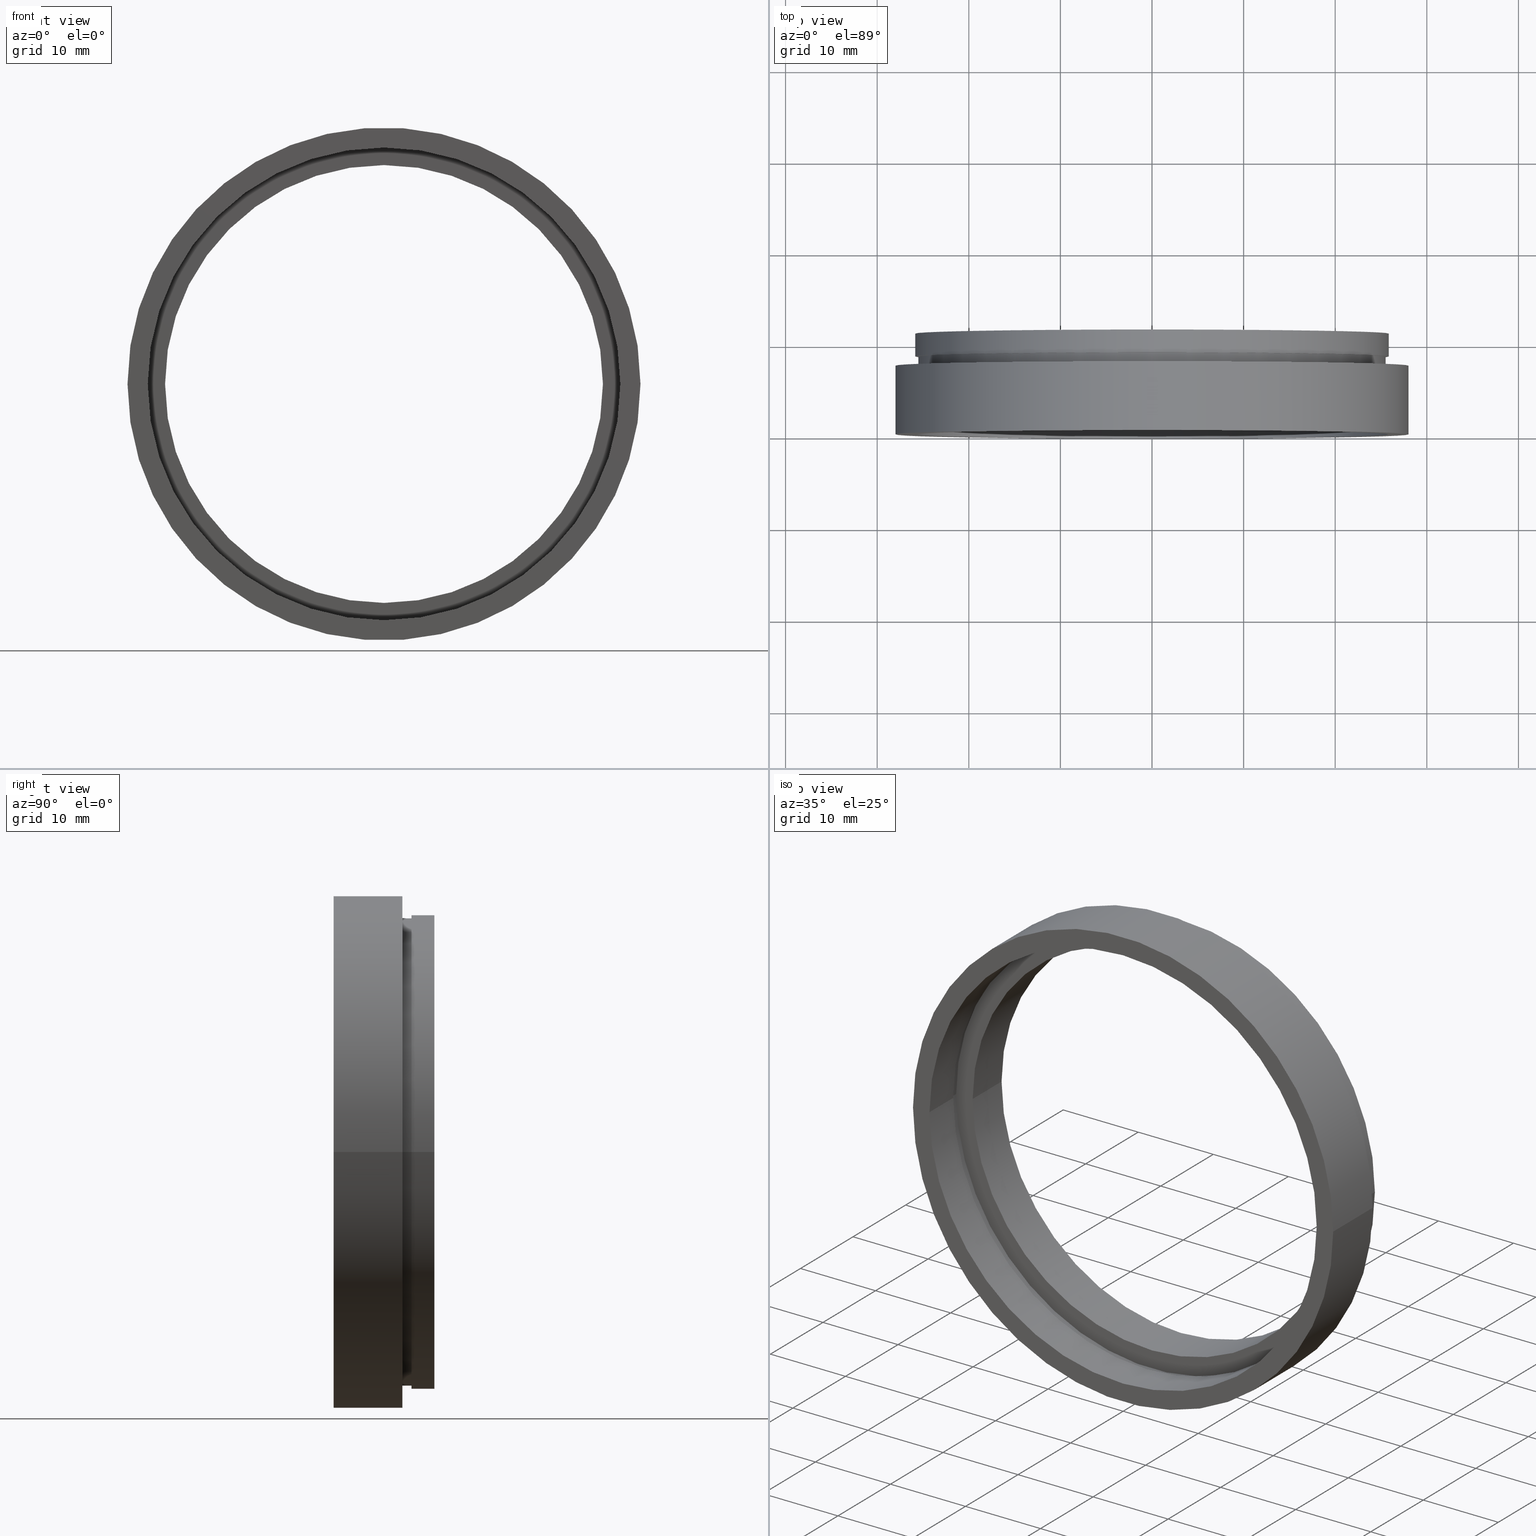
[diagram: canonical four-view strip — front | top / right | iso, engineering-drawing reading convention]
A machine part, canonical four-view strip (front | top / right | iso — engineering-drawing reading convention). The complete STEP part file that produces these views, byte-faithful:
ISO-10303-21;
HEADER;
FILE_DESCRIPTION (( 'STEP AP214' ),
    '1' );
FILE_NAME ('504092.STEP',
    '2019-10-09T07:22:28',
    ( '' ),
    ( '' ),
    'SwSTEP 2.0',
    'SolidWorks 2016',
    '' );
FILE_SCHEMA (( 'AUTOMOTIVE_DESIGN' ));
ENDSEC;

DATA;
#1 = DIRECTION ( 'NONE',  ( -1.224646799147351000E-016, 1.000000000000000000, -0.0000000000000000000 ) ) ;
#2 = ADVANCED_FACE ( 'NONE', ( #99, #369 ), #515, .F. ) ;
#3 = VERTEX_POINT ( 'NONE', #80 ) ;
#4 = DIRECTION ( 'NONE',  ( -1.224646799147351000E-016, 1.000000000000000000, -0.0000000000000000000 ) ) ;
#5 = ORIENTED_EDGE ( 'NONE', *, *, #393, .F. ) ;
#6 =( NAMED_UNIT ( * ) SI_UNIT ( $, .STERADIAN. ) SOLID_ANGLE_UNIT ( ) );
#7 = DIRECTION ( 'NONE',  ( -1.000000000000000000, -1.329290019905599200E-016, 0.0000000000000000000 ) ) ;
#8 = EDGE_CURVE ( 'NONE', #521, #283, #501, .T. ) ;
#9 =( NAMED_UNIT ( * ) PLANE_ANGLE_UNIT ( ) SI_UNIT ( $, .RADIAN. ) );
#10 = DIRECTION ( 'NONE',  ( -1.000000000000000000, -1.088738583249042200E-016, 0.0000000000000000000 ) ) ;
#11 = ORIENTED_EDGE ( 'NONE', *, *, #618, .T. ) ;
#12 = CARTESIAN_POINT ( 'NONE',  ( -28.00000000000000000, 7.499999999999992900, 0.0000000000000000000 ) ) ;
#13 = CIRCLE ( 'NONE', #130, 25.50000000000000400 ) ;
#14 = AXIS2_PLACEMENT_3D ( 'NONE', #359, #250, #113 ) ;
#15 = DIRECTION ( 'NONE',  ( -1.000000000000000000, -1.239088197126290800E-016, 0.0000000000000000000 ) ) ;
#16 = CARTESIAN_POINT ( 'NONE',  ( 0.0000000000000000000, 16.88601823708207700, 0.0000000000000000000 ) ) ;
#17 = ORIENTED_EDGE ( 'NONE', *, *, #199, .F. ) ;
#18 = CARTESIAN_POINT ( 'NONE',  ( -25.50000000000000400, 16.88601823708207300, 0.0000000000000000000 ) ) ;
#19 = VECTOR ( 'NONE', #432, 1000.000000000000000 ) ;
#20 = ORIENTED_EDGE ( 'NONE', *, *, #350, .T. ) ;
#21 = VECTOR ( 'NONE', #138, 1000.000000000000000 ) ;
#22 = CARTESIAN_POINT ( 'NONE',  ( -25.79999999999999700, -6.629035693753779700E-015, 0.0000000000000000000 ) ) ;
#23 = PRESENTATION_LAYER_ASSIGNMENT (  '', '', ( #519 ) ) ;
#24 = DIRECTION ( 'NONE',  ( -1.224646799147351000E-016, 1.000000000000000000, -0.0000000000000000000 ) ) ;
#25 = DIRECTION ( 'NONE',  ( -1.000000000000000000, -1.451651444332056200E-016, 0.0000000000000000000 ) ) ;
#26 = EDGE_LOOP ( 'NONE', ( #470, #417, #209, #569 ) ) ;
#27 = CYLINDRICAL_SURFACE ( 'NONE', #588, 25.50000000000000400 ) ;
#28 =( NAMED_UNIT ( * ) PLANE_ANGLE_UNIT ( ) SI_UNIT ( $, .RADIAN. ) );
#29 = STYLED_ITEM ( 'NONE', ( #163 ), #486 ) ;
#30 = CARTESIAN_POINT ( 'NONE',  ( 0.0000000000000000000, 16.88601823708207700, 0.0000000000000000000 ) ) ;
#31 = CARTESIAN_POINT ( 'NONE',  ( -27.99999999999999600, 16.88601823708207300, 0.0000000000000000000 ) ) ;
#32 = AXIS2_PLACEMENT_3D ( 'NONE', #30, #412, #508 ) ;
#33 = ORIENTED_EDGE ( 'NONE', *, *, #8, .F. ) ;
#34 = CIRCLE ( 'NONE', #593, 25.85000000000000100 ) ;
#35 = VERTEX_POINT ( 'NONE', #225 ) ;
#36 = AXIS2_PLACEMENT_3D ( 'NONE', #609, #264, #554 ) ;
#37 = EDGE_CURVE ( 'NONE', #550, #400, #616, .T. ) ;
#38 = EDGE_LOOP ( 'NONE', ( #128, #73, #598, #83 ) ) ;
#39 = FILL_AREA_STYLE_COLOUR ( '', #410 ) ;
#40 = CYLINDRICAL_SURFACE ( 'NONE', #612, 23.89999999999999900 ) ;
#41 = AXIS2_PLACEMENT_3D ( 'NONE', #459, #544, #551 ) ;
#42 = ADVANCED_FACE ( 'NONE', ( #213 ), #284, .F. ) ;
#43 = CARTESIAN_POINT ( 'NONE',  ( -25.50000000000000400, 7.499999999999992900, 0.0000000000000000000 ) ) ;
#44 = CARTESIAN_POINT ( 'NONE',  ( -25.85000000000000100, 16.88601823708207300, 0.0000000000000000000 ) ) ;
#45 = ORIENTED_EDGE ( 'NONE', *, *, #553, .F. ) ;
#46 = VECTOR ( 'NONE', #502, 1000.000000000000000 ) ;
#47 = LINE ( 'NONE', #305, #582 ) ;
#48 = CARTESIAN_POINT ( 'NONE',  ( 2.067940818438636500E-015, -3.469446951953614200E-015, 0.0000000000000000000 ) ) ;
#49 = DIRECTION ( 'NONE',  ( -1.224646799147351000E-016, 1.000000000000000000, -0.0000000000000000000 ) ) ;
#50 = EDGE_CURVE ( 'NONE', #342, #35, #242, .T. ) ;
#51 = DIRECTION ( 'NONE',  ( -1.224646799147351000E-016, 1.000000000000000000, -0.0000000000000000000 ) ) ;
#52 = DIRECTION ( 'NONE',  ( -1.224646799147351000E-016, 1.000000000000000000, -0.0000000000000000000 ) ) ;
#53 = ORIENTED_EDGE ( 'NONE', *, *, #257, .F. ) ;
#54 = CIRCLE ( 'NONE', #173, 23.89999999999999900 ) ;
#55 = FACE_BOUND ( 'NONE', #534, .T. ) ;
#56 = PRESENTATION_LAYER_ASSIGNMENT (  '', '', ( #140 ) ) ;
#57 = CARTESIAN_POINT ( 'NONE',  ( 1.026991039163387900E-015, 8.499999999999996400, 0.0000000000000000000 ) ) ;
#58 = SURFACE_STYLE_USAGE ( .BOTH. , #360 ) ;
#59 = DIRECTION ( 'NONE',  ( -1.000000000000000000, -1.224646799147351200E-016, 0.0000000000000000000 ) ) ;
#60 = EDGE_CURVE ( 'NONE', #379, #368, #54, .T. ) ;
#61 = DIRECTION ( 'NONE',  ( -1.000000000000000000, -1.451651444332056200E-016, 0.0000000000000000000 ) ) ;
#62 = CARTESIAN_POINT ( 'NONE',  ( 7.208293393765502500E-016, 10.99999999999999600, 0.0000000000000000000 ) ) ;
#63 = DIRECTION ( 'NONE',  ( -1.224646799147351000E-016, 1.000000000000000000, -0.0000000000000000000 ) ) ;
#64 = ORIENTED_EDGE ( 'NONE', *, *, #8, .T. ) ;
#65 = FACE_BOUND ( 'NONE', #624, .T. ) ;
#66 = ORIENTED_EDGE ( 'NONE', *, *, #75, .F. ) ;
#67 =( NAMED_UNIT ( * ) SI_UNIT ( $, .STERADIAN. ) SOLID_ANGLE_UNIT ( ) );
#68 =( GEOMETRIC_REPRESENTATION_CONTEXT ( 3 ) GLOBAL_UNCERTAINTY_ASSIGNED_CONTEXT ( ( #105 ) ) GLOBAL_UNIT_ASSIGNED_CONTEXT ( ( #205, #159, #396 ) ) REPRESENTATION_CONTEXT ( 'NONE', 'WORKASPACE' ) );
#69 = CARTESIAN_POINT ( 'NONE',  ( 25.50000000000000400, 8.500000000000000000, 3.122849337825751000E-015 ) ) ;
#70 = FACE_OUTER_BOUND ( 'NONE', #425, .T. ) ;
#71 = CARTESIAN_POINT ( 'NONE',  ( 0.0000000000000000000, 16.88601823708207700, 0.0000000000000000000 ) ) ;
#72 = AXIS2_PLACEMENT_3D ( 'NONE', #71, #168, #221 ) ;
#73 = ORIENTED_EDGE ( 'NONE', *, *, #244, .T. ) ;
#74 = CIRCLE ( 'NONE', #226, 25.85000000000000100 ) ;
#75 = EDGE_CURVE ( 'NONE', #600, #400, #364, .T. ) ;
#76 =( NAMED_UNIT ( * ) PLANE_ANGLE_UNIT ( ) SI_UNIT ( $, .RADIAN. ) );
#77 =( GEOMETRIC_REPRESENTATION_CONTEXT ( 3 ) GLOBAL_UNCERTAINTY_ASSIGNED_CONTEXT ( ( #177 ) ) GLOBAL_UNIT_ASSIGNED_CONTEXT ( ( #436, #579, #87 ) ) REPRESENTATION_CONTEXT ( 'NONE', 'WORKASPACE' ) );
#78 = ORIENTED_EDGE ( 'NONE', *, *, #350, .F. ) ;
#79 = CIRCLE ( 'NONE', #273, 28.00000000000000000 ) ;
#80 = CARTESIAN_POINT ( 'NONE',  ( 28.00000000000000400, 7.500000000000000000, 3.429011037612589700E-015 ) ) ;
#81 = FACE_OUTER_BOUND ( 'NONE', #141, .T. ) ;
#82 = STYLED_ITEM ( 'NONE', ( #129 ), #144 ) ;
#83 = ORIENTED_EDGE ( 'NONE', *, *, #618, .F. ) ;
#84 = ORIENTED_EDGE ( 'NONE', *, *, #338, .F. ) ;
#85 = MECHANICAL_DESIGN_GEOMETRIC_PRESENTATION_REPRESENTATION (  '', ( #474 ), #89 ) ;
#86 = CARTESIAN_POINT ( 'NONE',  ( 25.80000000000000400, 16.88601823708208000, 3.159588741800171900E-015 ) ) ;
#87 =( NAMED_UNIT ( * ) SI_UNIT ( $, .STERADIAN. ) SOLID_ANGLE_UNIT ( ) );
#88 = DIRECTION ( 'NONE',  ( -1.224646799147351000E-016, 1.000000000000000000, -0.0000000000000000000 ) ) ;
#89 =( GEOMETRIC_REPRESENTATION_CONTEXT ( 3 ) GLOBAL_UNCERTAINTY_ASSIGNED_CONTEXT ( ( #274 ) ) GLOBAL_UNIT_ASSIGNED_CONTEXT ( ( #249, #540, #587 ) ) REPRESENTATION_CONTEXT ( 'NONE', 'WORKASPACE' ) );
#90 = ORIENTED_EDGE ( 'NONE', *, *, #146, .F. ) ;
#91 = DIRECTION ( 'NONE',  ( -1.000000000000000000, -1.451651444332056200E-016, 0.0000000000000000000 ) ) ;
#92 = CARTESIAN_POINT ( 'NONE',  ( 1.026991039163387900E-015, 8.499999999999996400, 0.0000000000000000000 ) ) ;
#93 = EDGE_LOOP ( 'NONE', ( #270, #134 ) ) ;
#94 = ADVANCED_FACE ( 'NONE', ( #304, #215 ), #339, .F. ) ;
#95 = PRESENTATION_LAYER_ASSIGNMENT (  '', '', ( #322 ) ) ;
#96 = CARTESIAN_POINT ( 'NONE',  ( 2.067940818438636500E-015, -3.469446951953614200E-015, 0.0000000000000000000 ) ) ;
#97 = CARTESIAN_POINT ( 'NONE',  ( 1.149455719078123100E-015, 7.499999999999996400, 0.0000000000000000000 ) ) ;
#98 = ADVANCED_FACE ( 'NONE', ( #279 ), #27, .T. ) ;
#99 = FACE_OUTER_BOUND ( 'NONE', #124, .T. ) ;
#100 = VERTEX_POINT ( 'NONE', #190 ) ;
#101 = CIRCLE ( 'NONE', #178, 26.10000000000000100 ) ;
#102 = SURFACE_SIDE_STYLE ('',( #565 ) ) ;
#103 = EDGE_CURVE ( 'NONE', #435, #164, #117, .T. ) ;
#104 =( NAMED_UNIT ( * ) PLANE_ANGLE_UNIT ( ) SI_UNIT ( $, .RADIAN. ) );
#105 = UNCERTAINTY_MEASURE_WITH_UNIT (LENGTH_MEASURE( 1.000000000000000100E-005 ), #205, 'distance_accuracy_value', 'NONE');
#106 = CARTESIAN_POINT ( 'NONE',  ( 0.0000000000000000000, 16.88601823708207700, 0.0000000000000000000 ) ) ;
#107 = VERTEX_POINT ( 'NONE', #43 ) ;
#108 = FILL_AREA_STYLE ('',( #311 ) ) ;
#109 = AXIS2_PLACEMENT_3D ( 'NONE', #171, #120, #25 ) ;
#110 = SURFACE_SIDE_STYLE ('',( #558 ) ) ;
#111 = DIRECTION ( 'NONE',  ( -1.000000000000000000, -1.360567432138672100E-016, 0.0000000000000000000 ) ) ;
#112 = EDGE_CURVE ( 'NONE', #207, #600, #153, .T. ) ;
#113 = DIRECTION ( 'NONE',  ( -1.000000000000000000, -1.451651444332056200E-016, 0.0000000000000000000 ) ) ;
#114 =( LENGTH_UNIT ( ) NAMED_UNIT ( * ) SI_UNIT ( .MILLI., .METRE. ) );
#115 = COLOUR_RGB ( '',1.000000000000000000, 1.000000000000000000, 1.000000000000000000 ) ;
#116 = EDGE_CURVE ( 'NONE', #164, #435, #143, .T. ) ;
#117 = CIRCLE ( 'NONE', #546, 25.50000000000000400 ) ;
#118 =( NAMED_UNIT ( * ) SI_UNIT ( $, .STERADIAN. ) SOLID_ANGLE_UNIT ( ) );
#119 = EDGE_CURVE ( 'NONE', #562, #368, #263, .T. ) ;
#120 = DIRECTION ( 'NONE',  ( -1.224646799147351000E-016, 1.000000000000000000, -0.0000000000000000000 ) ) ;
#121 = FILL_AREA_STYLE_COLOUR ( '', #517 ) ;
#122 = CIRCLE ( 'NONE', #41, 26.10000000000000100 ) ;
#123 = ORIENTED_EDGE ( 'NONE', *, *, #615, .F. ) ;
#124 = EDGE_LOOP ( 'NONE', ( #123, #53 ) ) ;
#125 = EDGE_CURVE ( 'NONE', #600, #207, #101, .T. ) ;
#126 = PRODUCT_DEFINITION ( 'δ֪', '', #266, #298 ) ;
#127 = AXIS2_PLACEMENT_3D ( 'NONE', #466, #24, #405 ) ;
#128 = ORIENTED_EDGE ( 'NONE', *, *, #568, .T. ) ;
#129 = PRESENTATION_STYLE_ASSIGNMENT (( #589 ) ) ;
#130 = AXIS2_PLACEMENT_3D ( 'NONE', #97, #530, #577 ) ;
#131 = FACE_OUTER_BOUND ( 'NONE', #262, .T. ) ;
#132 = DIRECTION ( 'NONE',  ( -1.224646799147351000E-016, 1.000000000000000000, -0.0000000000000000000 ) ) ;
#133 = DIRECTION ( 'NONE',  ( -1.224646799147351000E-016, 1.000000000000000000, 0.0000000000000000000 ) ) ;
#134 = ORIENTED_EDGE ( 'NONE', *, *, #112, .T. ) ;
#135 = CYLINDRICAL_SURFACE ( 'NONE', #72, 25.80000000000000400 ) ;
#136 = ORIENTED_EDGE ( 'NONE', *, *, #222, .F. ) ;
#137 = AXIS2_PLACEMENT_3D ( 'NONE', #335, #224, #371 ) ;
#138 = DIRECTION ( 'NONE',  ( -1.224646799147351000E-016, 1.000000000000000000, -0.0000000000000000000 ) ) ;
#139 = DIRECTION ( 'NONE',  ( -1.224646799147351000E-016, 1.000000000000000000, -0.0000000000000000000 ) ) ;
#140 = STYLED_ITEM ( 'NONE', ( #563 ), #484 ) ;
#141 = EDGE_LOOP ( 'NONE', ( #78, #468, #409, #401 ) ) ;
#142 = EDGE_LOOP ( 'NONE', ( #255, #518 ) ) ;
#143 = CIRCLE ( 'NONE', #500, 25.50000000000000400 ) ;
#144 = ADVANCED_FACE ( 'NONE', ( #440 ), #522, .T. ) ;
#145 = CARTESIAN_POINT ( 'NONE',  ( 7.208293393765502500E-016, 10.99999999999999600, 0.0000000000000000000 ) ) ;
#146 = EDGE_CURVE ( 'NONE', #188, #435, #471, .T. ) ;
#147 = AXIS2_PLACEMENT_3D ( 'NONE', #483, #1, #448 ) ;
#148 = CARTESIAN_POINT ( 'NONE',  ( 23.89999999999999900, 16.88601823708208000, 2.926905849962173700E-015 ) ) ;
#149 = DIRECTION ( 'NONE',  ( 1.000000000000000000, 0.0000000000000000000, 0.0000000000000000000 ) ) ;
#150 = CIRCLE ( 'NONE', #514, 25.50000000000000400 ) ;
#151 = MECHANICAL_DESIGN_GEOMETRIC_PRESENTATION_REPRESENTATION (  '', ( #82 ), #386 ) ;
#152 = ORIENTED_EDGE ( 'NONE', *, *, #199, .T. ) ;
#153 = CIRCLE ( 'NONE', #361, 26.10000000000000100 ) ;
#154 =( NAMED_UNIT ( * ) PLANE_ANGLE_UNIT ( ) SI_UNIT ( $, .RADIAN. ) );
#155 = CARTESIAN_POINT ( 'NONE',  ( 0.0000000000000000000, 16.88601823708207700, 0.0000000000000000000 ) ) ;
#156 = EDGE_CURVE ( 'NONE', #161, #316, #343, .T. ) ;
#157 =( LENGTH_UNIT ( ) NAMED_UNIT ( * ) SI_UNIT ( .MILLI., .METRE. ) );
#158 = COLOUR_RGB ( '',1.000000000000000000, 1.000000000000000000, 1.000000000000000000 ) ;
#159 =( NAMED_UNIT ( * ) PLANE_ANGLE_UNIT ( ) SI_UNIT ( $, .RADIAN. ) );
#160 = UNCERTAINTY_MEASURE_WITH_UNIT (LENGTH_MEASURE( 1.000000000000000100E-005 ), #210, 'distance_accuracy_value', 'NONE');
#161 = VERTEX_POINT ( 'NONE', #545 ) ;
#162 = DIRECTION ( 'NONE',  ( -1.224646799147351000E-016, 1.000000000000000000, -0.0000000000000000000 ) ) ;
#163 = PRESENTATION_STYLE_ASSIGNMENT (( #507 ) ) ;
#164 = VERTEX_POINT ( 'NONE', #541 ) ;
#165 = STYLED_ITEM ( 'NONE', ( #172 ), #348 ) ;
#166 =( NAMED_UNIT ( * ) SI_UNIT ( $, .STERADIAN. ) SOLID_ANGLE_UNIT ( ) );
#167 = DIRECTION ( 'NONE',  ( -1.000000000000000000, -1.088738583249042200E-016, 0.0000000000000000000 ) ) ;
#168 = DIRECTION ( 'NONE',  ( -1.224646799147351000E-016, 1.000000000000000000, -0.0000000000000000000 ) ) ;
#169 = ORIENTED_EDGE ( 'NONE', *, *, #229, .T. ) ;
#170 = CARTESIAN_POINT ( 'NONE',  ( 0.0000000000000000000, 16.88601823708207700, 0.0000000000000000000 ) ) ;
#171 = CARTESIAN_POINT ( 'NONE',  ( 7.208293393765501500E-016, 10.99999999999999600, 0.0000000000000000000 ) ) ;
#172 = PRESENTATION_STYLE_ASSIGNMENT (( #454 ) ) ;
#173 = AXIS2_PLACEMENT_3D ( 'NONE', #424, #476, #91 ) ;
#174 = EDGE_LOOP ( 'NONE', ( #377, #622 ) ) ;
#175 = CIRCLE ( 'NONE', #216, 25.80000000000000400 ) ;
#176 = AXIS2_PLACEMENT_3D ( 'NONE', #170, #560, #366 ) ;
#177 = UNCERTAINTY_MEASURE_WITH_UNIT (LENGTH_MEASURE( 1.000000000000000100E-005 ), #436, 'distance_accuracy_value', 'NONE');
#178 = AXIS2_PLACEMENT_3D ( 'NONE', #374, #132, #7 ) ;
#179 = ORIENTED_EDGE ( 'NONE', *, *, #50, .F. ) ;
#180 = CIRCLE ( 'NONE', #398, 23.89999999999999900 ) ;
#181 = DIRECTION ( 'NONE',  ( -1.000000000000000000, -1.224646799147351000E-016, 0.0000000000000000000 ) ) ;
#182 = EDGE_CURVE ( 'NONE', #271, #35, #175, .T. ) ;
#183 = CARTESIAN_POINT ( 'NONE',  ( -25.80000000000000400, 16.88601823708207300, 0.0000000000000000000 ) ) ;
#184 = SURFACE_STYLE_FILL_AREA ( #108 ) ;
#185 = CARTESIAN_POINT ( 'NONE',  ( 1.026991039163387900E-015, 8.499999999999996400, 0.0000000000000000000 ) ) ;
#186 = ORIENTED_EDGE ( 'NONE', *, *, #325, .T. ) ;
#187 = SURFACE_STYLE_FILL_AREA ( #611 ) ;
#188 = VERTEX_POINT ( 'NONE', #248 ) ;
#189 = COLOUR_RGB ( '',1.000000000000000000, 1.000000000000000000, 1.000000000000000000 ) ;
#190 = CARTESIAN_POINT ( 'NONE',  ( 23.89999999999999900, 5.499999999999999100, 2.926905849962173700E-015 ) ) ;
#191 = EDGE_CURVE ( 'NONE', #516, #342, #334, .T. ) ;
#192 = DIRECTION ( 'NONE',  ( -1.224646799147351000E-016, 1.000000000000000000, -0.0000000000000000000 ) ) ;
#193 = FILL_AREA_STYLE ('',( #203 ) ) ;
#194 = ADVANCED_FACE ( 'NONE', ( #402 ), #464, .T. ) ;
#195 = DIRECTION ( 'NONE',  ( -1.224646799147351000E-016, 1.000000000000000000, -0.0000000000000000000 ) ) ;
#196 = EDGE_LOOP ( 'NONE', ( #278, #152 ) ) ;
#197 = CIRCLE ( 'NONE', #245, 25.80000000000000100 ) ;
#198 = CARTESIAN_POINT ( 'NONE',  ( 2.067940818438636500E-015, -3.469446951953614200E-015, 0.0000000000000000000 ) ) ;
#199 = EDGE_CURVE ( 'NONE', #342, #516, #197, .T. ) ;
#200 = DIRECTION ( 'NONE',  ( -1.000000000000000000, -1.224646799147351200E-016, 0.0000000000000000000 ) ) ;
#201 = DIRECTION ( 'NONE',  ( -1.224646799147351000E-016, 1.000000000000000000, -0.0000000000000000000 ) ) ;
#202 =( LENGTH_UNIT ( ) NAMED_UNIT ( * ) SI_UNIT ( .MILLI., .METRE. ) );
#203 = FILL_AREA_STYLE_COLOUR ( '', #623 ) ;
#204 = DIRECTION ( 'NONE',  ( -1.224646799147351000E-016, 1.000000000000000000, -0.0000000000000000000 ) ) ;
#205 =( LENGTH_UNIT ( ) NAMED_UNIT ( * ) SI_UNIT ( .MILLI., .METRE. ) );
#206 = CARTESIAN_POINT ( 'NONE',  ( 26.10000000000000100, 16.88601823708208000, 3.196328145774592300E-015 ) ) ;
#207 = VERTEX_POINT ( 'NONE', #387 ) ;
#208 = FACE_BOUND ( 'NONE', #557, .T. ) ;
#209 = ORIENTED_EDGE ( 'NONE', *, *, #116, .F. ) ;
#210 =( LENGTH_UNIT ( ) NAMED_UNIT ( * ) SI_UNIT ( .MILLI., .METRE. ) );
#211 = CARTESIAN_POINT ( 'NONE',  ( 1.149455719078123100E-015, 7.499999999999996400, 0.0000000000000000000 ) ) ;
#212 = EDGE_CURVE ( 'NONE', #463, #232, #74, .T. ) ;
#213 = FACE_OUTER_BOUND ( 'NONE', #223, .T. ) ;
#214 = ORIENTED_EDGE ( 'NONE', *, *, #116, .T. ) ;
#215 = FACE_BOUND ( 'NONE', #252, .T. ) ;
#216 = AXIS2_PLACEMENT_3D ( 'NONE', #308, #49, #495 ) ;
#217 = PLANE ( 'NONE',  #503 ) ;
#218 = CARTESIAN_POINT ( 'NONE',  ( 1.394385078907593200E-015, 5.499999999999996400, 0.0000000000000000000 ) ) ;
#219 = PRESENTATION_LAYER_ASSIGNMENT (  '', '', ( #82 ) ) ;
#220 = UNCERTAINTY_MEASURE_WITH_UNIT (LENGTH_MEASURE( 1.000000000000000100E-005 ), #114, 'distance_accuracy_value', 'NONE');
#221 = DIRECTION ( 'NONE',  ( -1.000000000000000000, -1.344746880602175700E-016, 0.0000000000000000000 ) ) ;
#222 = EDGE_CURVE ( 'NONE', #3, #283, #79, .T. ) ;
#223 = EDGE_LOOP ( 'NONE', ( #17, #328, #227, #497 ) ) ;
#224 = DIRECTION ( 'NONE',  ( -1.224646799147351000E-016, 1.000000000000000000, 0.0000000000000000000 ) ) ;
#225 = CARTESIAN_POINT ( 'NONE',  ( 25.80000000000000400, 4.500000000000000900, 3.159588741800171900E-015 ) ) ;
#226 = AXIS2_PLACEMENT_3D ( 'NONE', #57, #192, #535 ) ;
#227 = ORIENTED_EDGE ( 'NONE', *, *, #338, .T. ) ;
#228 = ORIENTED_EDGE ( 'NONE', *, *, #358, .T. ) ;
#229 = EDGE_CURVE ( 'NONE', #100, #379, #458, .T. ) ;
#230 = CARTESIAN_POINT ( 'NONE',  ( 25.85000000000000100, 8.500000000000000000, 0.0000000000000000000 ) ) ;
#231 = LINE ( 'NONE', #18, #282 ) ;
#232 = VERTEX_POINT ( 'NONE', #592 ) ;
#233 = DIRECTION ( 'NONE',  ( -1.224646799147351000E-016, 1.000000000000000000, -0.0000000000000000000 ) ) ;
#234 = EDGE_LOOP ( 'NONE', ( #439, #549, #11, #532 ) ) ;
#235 = AXIS2_PLACEMENT_3D ( 'NONE', #145, #52, #351 ) ;
#236 = FILL_AREA_STYLE ('',( #288 ) ) ;
#237 = DIRECTION ( 'NONE',  ( -1.224646799147351000E-016, 1.000000000000000000, -0.0000000000000000000 ) ) ;
#238 = AXIS2_PLACEMENT_3D ( 'NONE', #525, #585, #383 ) ;
#239 = CARTESIAN_POINT ( 'NONE',  ( 0.0000000000000000000, 16.88601823708207700, 0.0000000000000000000 ) ) ;
#240 = SURFACE_STYLE_FILL_AREA ( #236 ) ;
#241 = ORIENTED_EDGE ( 'NONE', *, *, #182, .T. ) ;
#242 = LINE ( 'NONE', #86, #543 ) ;
#243 = CARTESIAN_POINT ( 'NONE',  ( 1.149455719078123100E-015, 7.499999999999996400, 0.0000000000000000000 ) ) ;
#244 = EDGE_CURVE ( 'NONE', #463, #161, #47, .T. ) ;
#245 = AXIS2_PLACEMENT_3D ( 'NONE', #96, #4, #441 ) ;
#246 = CARTESIAN_POINT ( 'NONE',  ( 25.50000000000000400, 16.88601823708208000, 3.122849337825751000E-015 ) ) ;
#247 = APPLICATION_PROTOCOL_DEFINITION ( 'draft international standard', 'automotive_design', 1998, #594 ) ;
#248 = CARTESIAN_POINT ( 'NONE',  ( 25.50000000000000400, 7.500000000000000000, 3.122849337825751000E-015 ) ) ;
#249 =( LENGTH_UNIT ( ) NAMED_UNIT ( * ) SI_UNIT ( .MILLI., .METRE. ) );
#250 = DIRECTION ( 'NONE',  ( -1.224646799147351000E-016, 1.000000000000000000, -0.0000000000000000000 ) ) ;
#251 = AXIS2_PLACEMENT_3D ( 'NONE', #239, #595, #586 ) ;
#252 = EDGE_LOOP ( 'NONE', ( #214, #261 ) ) ;
#253 = CARTESIAN_POINT ( 'NONE',  ( 1.516849758822328300E-015, 4.499999999999997300, 0.0000000000000000000 ) ) ;
#254 = COLOUR_RGB ( '',1.000000000000000000, 1.000000000000000000, 1.000000000000000000 ) ;
#255 = ORIENTED_EDGE ( 'NONE', *, *, #381, .F. ) ;
#256 = DIRECTION ( 'NONE',  ( -1.224646799147351000E-016, 1.000000000000000000, -0.0000000000000000000 ) ) ;
#257 = EDGE_CURVE ( 'NONE', #613, #521, #570, .T. ) ;
#258 = CARTESIAN_POINT ( 'NONE',  ( 23.89999999999999900, 11.00000000000000000, 2.926905849962173700E-015 ) ) ;
#259 = MANIFOLD_SOLID_BREP ( '��ת1', #581 ) ;
#260 = AXIS2_PLACEMENT_3D ( 'NONE', #48, #453, #59 ) ;
#261 = ORIENTED_EDGE ( 'NONE', *, *, #103, .T. ) ;
#262 = EDGE_LOOP ( 'NONE', ( #314, #419, #489, #505 ) ) ;
#263 = LINE ( 'NONE', #431, #21 ) ;
#264 = DIRECTION ( 'NONE',  ( 1.224646799147351000E-016, -1.000000000000000000, 0.0000000000000000000 ) ) ;
#265 = CARTESIAN_POINT ( 'NONE',  ( 23.89999999999999900, 5.500000000000000000, 0.0000000000000000000 ) ) ;
#266 = PRODUCT_DEFINITION_FORMATION_WITH_SPECIFIED_SOURCE ( '�κ�', '', #423, .NOT_KNOWN. ) ;
#267 = CARTESIAN_POINT ( 'NONE',  ( 27.99999999999999600, 16.88601823708208000, 3.429011037612588900E-015 ) ) ;
#268 = EDGE_CURVE ( 'NONE', #316, #161, #414, .T. ) ;
#269 = CYLINDRICAL_SURFACE ( 'NONE', #14, 23.89999999999999900 ) ;
#270 = ORIENTED_EDGE ( 'NONE', *, *, #125, .T. ) ;
#271 = VERTEX_POINT ( 'NONE', #455 ) ;
#272 = CIRCLE ( 'NONE', #296, 23.89999999999999900 ) ;
#273 = AXIS2_PLACEMENT_3D ( 'NONE', #243, #388, #299 ) ;
#274 = UNCERTAINTY_MEASURE_WITH_UNIT (LENGTH_MEASURE( 1.000000000000000100E-005 ), #249, 'distance_accuracy_value', 'NONE');
#275 = ORIENTED_EDGE ( 'NONE', *, *, #393, .T. ) ;
#276 = PRODUCT_RELATED_PRODUCT_CATEGORY ( 'part', '', ( #423 ) ) ;
#277 = FACE_OUTER_BOUND ( 'NONE', #481, .T. ) ;
#278 = ORIENTED_EDGE ( 'NONE', *, *, #191, .T. ) ;
#279 = FACE_OUTER_BOUND ( 'NONE', #26, .T. ) ;
#280 = CYLINDRICAL_SURFACE ( 'NONE', #422, 27.99999999999999600 ) ;
#281 = MECHANICAL_DESIGN_GEOMETRIC_PRESENTATION_REPRESENTATION (  '', ( #344 ), #68 ) ;
#282 = VECTOR ( 'NONE', #201, 1000.000000000000000 ) ;
#283 = VERTEX_POINT ( 'NONE', #12 ) ;
#284 = CYLINDRICAL_SURFACE ( 'NONE', #331, 25.80000000000000400 ) ;
#285 = AXIS2_PLACEMENT_3D ( 'NONE', #62, #547, #355 ) ;
#286 = SURFACE_STYLE_USAGE ( .BOTH. , #571 ) ;
#287 = UNCERTAINTY_MEASURE_WITH_UNIT (LENGTH_MEASURE( 1.000000000000000100E-005 ), #449, 'distance_accuracy_value', 'NONE');
#288 = FILL_AREA_STYLE_COLOUR ( '', #115 ) ;
#289 = ADVANCED_FACE ( 'NONE', ( #473 ), #280, .T. ) ;
#290 = DIRECTION ( 'NONE',  ( -1.224646799147351000E-016, 1.000000000000000000, -0.0000000000000000000 ) ) ;
#291 = ORIENTED_EDGE ( 'NONE', *, *, #156, .T. ) ;
#292 = DIRECTION ( 'NONE',  ( -1.000000000000000000, -1.329290019905599200E-016, 0.0000000000000000000 ) ) ;
#293 = FACE_OUTER_BOUND ( 'NONE', #93, .T. ) ;
#294 = ORIENTED_EDGE ( 'NONE', *, *, #257, .T. ) ;
#295 = ADVANCED_FACE ( 'NONE', ( #70 ), #567, .F. ) ;
#296 = AXIS2_PLACEMENT_3D ( 'NONE', #494, #162, #10 ) ;
#297 = COLOUR_RGB ( '',1.000000000000000000, 1.000000000000000000, 1.000000000000000000 ) ;
#298 = PRODUCT_DEFINITION_CONTEXT ( 'detailed design', #594, 'design' ) ;
#299 = DIRECTION ( 'NONE',  ( -1.000000000000000000, -1.239088197126290800E-016, 0.0000000000000000000 ) ) ;
#300 = PRODUCT_CONTEXT ( 'NONE', #493, 'mechanical' ) ;
#301 =( GEOMETRIC_REPRESENTATION_CONTEXT ( 3 ) GLOBAL_UNCERTAINTY_ASSIGNED_CONTEXT ( ( #220 ) ) GLOBAL_UNIT_ASSIGNED_CONTEXT ( ( #114, #28, #118 ) ) REPRESENTATION_CONTEXT ( 'NONE', 'WORKASPACE' ) );
#302 = DIRECTION ( 'NONE',  ( -1.224646799147351000E-016, 1.000000000000000000, -0.0000000000000000000 ) ) ;
#303 = ORIENTED_EDGE ( 'NONE', *, *, #37, .T. ) ;
#304 = FACE_OUTER_BOUND ( 'NONE', #607, .T. ) ;
#305 = CARTESIAN_POINT ( 'NONE',  ( 25.85000000000000100, 16.88601823708208000, 3.165711975795908200E-015 ) ) ;
#306 = LINE ( 'NONE', #183, #19 ) ;
#307 = CARTESIAN_POINT ( 'NONE',  ( 25.80000000000000400, -3.098582101534486800E-016, 3.159588741800171900E-015 ) ) ;
#308 = CARTESIAN_POINT ( 'NONE',  ( 1.516849758822328300E-015, 4.499999999999997300, 0.0000000000000000000 ) ) ;
#309 = SURFACE_SIDE_STYLE ('',( #504 ) ) ;
#310 = FILL_AREA_STYLE ('',( #399 ) ) ;
#311 = FILL_AREA_STYLE_COLOUR ( '', #297 ) ;
#312 = CARTESIAN_POINT ( 'NONE',  ( -23.89999999999999900, 10.99999999999999300, 0.0000000000000000000 ) ) ;
#313 = PRESENTATION_LAYER_ASSIGNMENT (  '', '', ( #165 ) ) ;
#314 = ORIENTED_EDGE ( 'NONE', *, *, #229, .F. ) ;
#315 =( NAMED_UNIT ( * ) SI_UNIT ( $, .STERADIAN. ) SOLID_ANGLE_UNIT ( ) );
#316 = VERTEX_POINT ( 'NONE', #548 ) ;
#317 = PRESENTATION_LAYER_ASSIGNMENT (  '', '', ( #474 ) ) ;
#318 = DIRECTION ( 'NONE',  ( -1.224646799147351000E-016, 1.000000000000000000, -0.0000000000000000000 ) ) ;
#319 = ORIENTED_EDGE ( 'NONE', *, *, #103, .F. ) ;
#320 = VECTOR ( 'NONE', #51, 1000.000000000000000 ) ;
#321 = CIRCLE ( 'NONE', #434, 28.00000000000000000 ) ;
#322 = STYLED_ITEM ( 'NONE', ( #539 ), #345 ) ;
#323 = FACE_OUTER_BOUND ( 'NONE', #591, .T. ) ;
#324 = SURFACE_STYLE_USAGE ( .BOTH. , #407 ) ;
#325 = EDGE_CURVE ( 'NONE', #562, #100, #272, .T. ) ;
#326 = AXIS2_PLACEMENT_3D ( 'NONE', #573, #302, #200 ) ;
#327 = UNCERTAINTY_MEASURE_WITH_UNIT (LENGTH_MEASURE( 1.000000000000000100E-005 ), #157, 'distance_accuracy_value', 'NONE');
#328 = ORIENTED_EDGE ( 'NONE', *, *, #50, .T. ) ;
#329 = EDGE_LOOP ( 'NONE', ( #447, #363 ) ) ;
#330 = FACE_OUTER_BOUND ( 'NONE', #373, .T. ) ;
#331 = AXIS2_PLACEMENT_3D ( 'NONE', #378, #290, #584 ) ;
#332 =( GEOMETRIC_REPRESENTATION_CONTEXT ( 3 ) GLOBAL_UNCERTAINTY_ASSIGNED_CONTEXT ( ( #287 ) ) GLOBAL_UNIT_ASSIGNED_CONTEXT ( ( #449, #104, #487 ) ) REPRESENTATION_CONTEXT ( 'NONE', 'WORKASPACE' ) );
#333 = ORIENTED_EDGE ( 'NONE', *, *, #212, .F. ) ;
#334 = CIRCLE ( 'NONE', #574, 25.80000000000000100 ) ;
#335 = CARTESIAN_POINT ( 'NONE',  ( 28.00000000000000000, -4.814824860968089600E-032, 0.0000000000000000000 ) ) ;
#336 = VECTOR ( 'NONE', #478, 1000.000000000000000 ) ;
#337 = DIRECTION ( 'NONE',  ( -1.224646799147351000E-016, 1.000000000000000000, -0.0000000000000000000 ) ) ;
#338 = EDGE_CURVE ( 'NONE', #35, #271, #346, .T. ) ;
#339 = PLANE ( 'NONE',  #488 ) ;
#340 = CIRCLE ( 'NONE', #109, 23.89999999999999900 ) ;
#341 = ORIENTED_EDGE ( 'NONE', *, *, #615, .T. ) ;
#342 = VERTEX_POINT ( 'NONE', #307 ) ;
#343 = CIRCLE ( 'NONE', #235, 25.85000000000000100 ) ;
#344 = STYLED_ITEM ( 'NONE', ( #426 ), #259 ) ;
#345 = ADVANCED_FACE ( 'NONE', ( #131 ), #40, .F. ) ;
#346 = CIRCLE ( 'NONE', #472, 25.80000000000000400 ) ;
#347 = DIRECTION ( 'NONE',  ( -1.000000000000000000, -1.224646799147351000E-016, 0.0000000000000000000 ) ) ;
#348 = ADVANCED_FACE ( 'NONE', ( #323 ), #269, .F. ) ;
#349 = VECTOR ( 'NONE', #421, 1000.000000000000000 ) ;
#350 = EDGE_CURVE ( 'NONE', #207, #550, #510, .T. ) ;
#351 = DIRECTION ( 'NONE',  ( -1.000000000000000000, -1.342145822806040300E-016, 0.0000000000000000000 ) ) ;
#352 = FILL_AREA_STYLE ('',( #491 ) ) ;
#353 = DIRECTION ( 'NONE',  ( -1.000000000000000000, -1.344746880602175700E-016, 0.0000000000000000000 ) ) ;
#354 = MECHANICAL_DESIGN_GEOMETRIC_PRESENTATION_REPRESENTATION (  '', ( #322 ), #452 ) ;
#355 = DIRECTION ( 'NONE',  ( -1.000000000000000000, -1.342145822806040300E-016, 0.0000000000000000000 ) ) ;
#356 =( NAMED_UNIT ( * ) PLANE_ANGLE_UNIT ( ) SI_UNIT ( $, .RADIAN. ) );
#357 = ORIENTED_EDGE ( 'NONE', *, *, #112, .F. ) ;
#358 = EDGE_CURVE ( 'NONE', #107, #164, #231, .T. ) ;
#359 = CARTESIAN_POINT ( 'NONE',  ( 0.0000000000000000000, 16.88601823708207700, 0.0000000000000000000 ) ) ;
#360 = SURFACE_SIDE_STYLE ('',( #444 ) ) ;
#361 = AXIS2_PLACEMENT_3D ( 'NONE', #380, #529, #292 ) ;
#362 = ORIENTED_EDGE ( 'NONE', *, *, #406, .T. ) ;
#363 = ORIENTED_EDGE ( 'NONE', *, *, #60, .F. ) ;
#364 = LINE ( 'NONE', #430, #420 ) ;
#365 = DIRECTION ( 'NONE',  ( 1.000000000000000000, 1.224646799147351000E-016, 0.0000000000000000000 ) ) ;
#366 = DIRECTION ( 'NONE',  ( -1.000000000000000000, -1.342145822806040300E-016, 0.0000000000000000000 ) ) ;
#367 = SURFACE_SIDE_STYLE ('',( #411 ) ) ;
#368 = VERTEX_POINT ( 'NONE', #312 ) ;
#369 = FACE_BOUND ( 'NONE', #196, .T. ) ;
#370 =( GEOMETRIC_REPRESENTATION_CONTEXT ( 3 ) GLOBAL_UNCERTAINTY_ASSIGNED_CONTEXT ( ( #327 ) ) GLOBAL_UNIT_ASSIGNED_CONTEXT ( ( #157, #154, #67 ) ) REPRESENTATION_CONTEXT ( 'NONE', 'WORKASPACE' ) );
#371 = DIRECTION ( 'NONE',  ( -1.000000000000000000, -1.224646799147351000E-016, 0.0000000000000000000 ) ) ;
#372 = PRESENTATION_STYLE_ASSIGNMENT (( #590 ) ) ;
#373 = EDGE_LOOP ( 'NONE', ( #90, #275, #228, #319 ) ) ;
#374 = CARTESIAN_POINT ( 'NONE',  ( 1.516849758822328300E-015, 4.499999999999997300, 0.0000000000000000000 ) ) ;
#375 = CARTESIAN_POINT ( 'NONE',  ( 1.394385078907593200E-015, 5.499999999999996400, 0.0000000000000000000 ) ) ;
#376 = CARTESIAN_POINT ( 'NONE',  ( -23.89999999999999900, 5.499999999999993800, 0.0000000000000000000 ) ) ;
#377 = ORIENTED_EDGE ( 'NONE', *, *, #467, .T. ) ;
#378 = CARTESIAN_POINT ( 'NONE',  ( 0.0000000000000000000, 16.88601823708207700, 0.0000000000000000000 ) ) ;
#379 = VERTEX_POINT ( 'NONE', #258 ) ;
#380 = CARTESIAN_POINT ( 'NONE',  ( 1.516849758822328300E-015, 4.499999999999997300, 0.0000000000000000000 ) ) ;
#381 = EDGE_CURVE ( 'NONE', #400, #550, #122, .T. ) ;
#382 = PRESENTATION_LAYER_ASSIGNMENT (  '', '', ( #29 ) ) ;
#383 = DIRECTION ( 'NONE',  ( 1.000000000000000000, 1.224646799147351000E-016, 0.0000000000000000000 ) ) ;
#384 = EDGE_LOOP ( 'NONE', ( #564, #291 ) ) ;
#385 = ORIENTED_EDGE ( 'NONE', *, *, #528, .T. ) ;
#386 =( GEOMETRIC_REPRESENTATION_CONTEXT ( 3 ) GLOBAL_UNCERTAINTY_ASSIGNED_CONTEXT ( ( #415 ) ) GLOBAL_UNIT_ASSIGNED_CONTEXT ( ( #202, #9, #6 ) ) REPRESENTATION_CONTEXT ( 'NONE', 'WORKASPACE' ) );
#387 = CARTESIAN_POINT ( 'NONE',  ( 26.10000000000000100, 4.500000000000000900, 3.196328145774592300E-015 ) ) ;
#388 = DIRECTION ( 'NONE',  ( -1.224646799147351000E-016, 1.000000000000000000, -0.0000000000000000000 ) ) ;
#389 = DIRECTION ( 'NONE',  ( -1.224646799147351000E-016, 1.000000000000000000, -0.0000000000000000000 ) ) ;
#390 = APPLICATION_PROTOCOL_DEFINITION ( 'draft international standard', 'automotive_design', 1998, #493 ) ;
#391 = CARTESIAN_POINT ( 'NONE',  ( 26.10000000000000100, 5.500000000000000000, 3.196328145774592300E-015 ) ) ;
#392 = VECTOR ( 'NONE', #204, 1000.000000000000000 ) ;
#393 = EDGE_CURVE ( 'NONE', #188, #107, #150, .T. ) ;
#394 = ORIENTED_EDGE ( 'NONE', *, *, #467, .F. ) ;
#395 = SURFACE_SIDE_STYLE ('',( #184 ) ) ;
#396 =( NAMED_UNIT ( * ) SI_UNIT ( $, .STERADIAN. ) SOLID_ANGLE_UNIT ( ) );
#397 = DIRECTION ( 'NONE',  ( -1.224646799147351000E-016, 1.000000000000000000, -0.0000000000000000000 ) ) ;
#398 = AXIS2_PLACEMENT_3D ( 'NONE', #218, #318, #167 ) ;
#399 = FILL_AREA_STYLE_COLOUR ( '', #158 ) ;
#400 = VERTEX_POINT ( 'NONE', #603 ) ;
#401 = ORIENTED_EDGE ( 'NONE', *, *, #381, .T. ) ;
#402 = FACE_OUTER_BOUND ( 'NONE', #578, .T. ) ;
#403 = CARTESIAN_POINT ( 'NONE',  ( 25.85000000000000100, 8.500000000000000000, 3.165711975795908200E-015 ) ) ;
#404 = AXIS2_PLACEMENT_3D ( 'NONE', #523, #536, #149 ) ;
#405 = DIRECTION ( 'NONE',  ( -1.000000000000000000, -1.329290019905599200E-016, 0.0000000000000000000 ) ) ;
#406 = EDGE_CURVE ( 'NONE', #100, #562, #180, .T. ) ;
#407 = SURFACE_SIDE_STYLE ('',( #187 ) ) ;
#408 = DIRECTION ( 'NONE',  ( -1.000000000000000000, -1.239088197126290800E-016, 0.0000000000000000000 ) ) ;
#409 = ORIENTED_EDGE ( 'NONE', *, *, #75, .T. ) ;
#410 = COLOUR_RGB ( '',1.000000000000000000, 1.000000000000000000, 1.000000000000000000 ) ;
#411 = SURFACE_STYLE_FILL_AREA ( #465 ) ;
#412 = DIRECTION ( 'NONE',  ( -1.224646799147351000E-016, 1.000000000000000000, -0.0000000000000000000 ) ) ;
#413 = PRESENTATION_LAYER_ASSIGNMENT (  '', '', ( #344 ) ) ;
#414 = CIRCLE ( 'NONE', #285, 25.85000000000000100 ) ;
#415 = UNCERTAINTY_MEASURE_WITH_UNIT (LENGTH_MEASURE( 1.000000000000000100E-005 ), #202, 'distance_accuracy_value', 'NONE');
#416 = AXIS2_PLACEMENT_3D ( 'NONE', #265, #451, #347 ) ;
#417 = ORIENTED_EDGE ( 'NONE', *, *, #146, .T. ) ;
#418 = FACE_OUTER_BOUND ( 'NONE', #142, .T. ) ;
#419 = ORIENTED_EDGE ( 'NONE', *, *, #325, .F. ) ;
#420 = VECTOR ( 'NONE', #576, 1000.000000000000000 ) ;
#421 = DIRECTION ( 'NONE',  ( -1.224646799147351000E-016, 1.000000000000000000, -0.0000000000000000000 ) ) ;
#422 = AXIS2_PLACEMENT_3D ( 'NONE', #155, #256, #15 ) ;
#423 = PRODUCT ( '504092', '504092', '', ( #300 ) ) ;
#424 = CARTESIAN_POINT ( 'NONE',  ( 7.208293393765501500E-016, 10.99999999999999600, 0.0000000000000000000 ) ) ;
#425 = EDGE_LOOP ( 'NONE', ( #357, #20, #303, #66 ) ) ;
#426 = PRESENTATION_STYLE_ASSIGNMENT (( #597 ) ) ;
#427 = LINE ( 'NONE', #267, #46 ) ;
#428 = DIRECTION ( 'NONE',  ( -1.000000000000000000, -1.360567432138672100E-016, 0.0000000000000000000 ) ) ;
#429 = EDGE_CURVE ( 'NONE', #368, #379, #340, .T. ) ;
#430 = CARTESIAN_POINT ( 'NONE',  ( -26.10000000000000100, 16.88601823708207300, 0.0000000000000000000 ) ) ;
#431 = CARTESIAN_POINT ( 'NONE',  ( -23.89999999999999900, 16.88601823708207300, 0.0000000000000000000 ) ) ;
#432 = DIRECTION ( 'NONE',  ( -1.224646799147351000E-016, 1.000000000000000000, -0.0000000000000000000 ) ) ;
#433 = ADVANCED_FACE ( 'NONE', ( #330 ), #621, .T. ) ;
#434 = AXIS2_PLACEMENT_3D ( 'NONE', #555, #460, #408 ) ;
#435 = VERTEX_POINT ( 'NONE', #69 ) ;
#436 =( LENGTH_UNIT ( ) NAMED_UNIT ( * ) SI_UNIT ( .MILLI., .METRE. ) );
#437 = PLANE ( 'NONE',  #238 ) ;
#438 = FACE_OUTER_BOUND ( 'NONE', #38, .T. ) ;
#439 = ORIENTED_EDGE ( 'NONE', *, *, #244, .F. ) ;
#440 = FACE_OUTER_BOUND ( 'NONE', #234, .T. ) ;
#441 = DIRECTION ( 'NONE',  ( -1.000000000000000000, -1.224646799147351000E-016, 0.0000000000000000000 ) ) ;
#442 = ADVANCED_FACE ( 'NONE', ( #81 ), #580, .F. ) ;
#443 = MECHANICAL_DESIGN_GEOMETRIC_PRESENTATION_REPRESENTATION (  '', ( #29 ), #556 ) ;
#444 = SURFACE_STYLE_FILL_AREA ( #310 ) ;
#445 = ADVANCED_FACE ( 'NONE', ( #498, #482 ), #217, .F. ) ;
#446 = DIRECTION ( 'NONE',  ( -1.224646799147351000E-016, 1.000000000000000000, -0.0000000000000000000 ) ) ;
#447 = ORIENTED_EDGE ( 'NONE', *, *, #429, .F. ) ;
#448 = DIRECTION ( 'NONE',  ( -1.000000000000000000, -1.342145822806040300E-016, 0.0000000000000000000 ) ) ;
#449 =( LENGTH_UNIT ( ) NAMED_UNIT ( * ) SI_UNIT ( .MILLI., .METRE. ) );
#450 = DIRECTION ( 'NONE',  ( -1.000000000000000000, -1.329290019905599200E-016, 0.0000000000000000000 ) ) ;
#451 = DIRECTION ( 'NONE',  ( -1.224646799147351000E-016, 1.000000000000000000, 0.0000000000000000000 ) ) ;
#452 =( GEOMETRIC_REPRESENTATION_CONTEXT ( 3 ) GLOBAL_UNCERTAINTY_ASSIGNED_CONTEXT ( ( #160 ) ) GLOBAL_UNIT_ASSIGNED_CONTEXT ( ( #210, #356, #315 ) ) REPRESENTATION_CONTEXT ( 'NONE', 'WORKASPACE' ) );
#453 = DIRECTION ( 'NONE',  ( -1.224646799147351000E-016, 1.000000000000000000, -0.0000000000000000000 ) ) ;
#454 = SURFACE_STYLE_USAGE ( .BOTH. , #395 ) ;
#455 = CARTESIAN_POINT ( 'NONE',  ( -25.80000000000000400, 4.499999999999993800, 0.0000000000000000000 ) ) ;
#456 = ORIENTED_EDGE ( 'NONE', *, *, #568, .F. ) ;
#457 = ORIENTED_EDGE ( 'NONE', *, *, #528, .F. ) ;
#458 = LINE ( 'NONE', #148, #320 ) ;
#459 = CARTESIAN_POINT ( 'NONE',  ( 1.394385078907593200E-015, 5.499999999999996400, 0.0000000000000000000 ) ) ;
#460 = DIRECTION ( 'NONE',  ( -1.224646799147351000E-016, 1.000000000000000000, -0.0000000000000000000 ) ) ;
#461 = AXIS2_PLACEMENT_3D ( 'NONE', #375, #520, #480 ) ;
#462 = PLANE ( 'NONE',  #36 ) ;
#463 = VERTEX_POINT ( 'NONE', #403 ) ;
#464 = CYLINDRICAL_SURFACE ( 'NONE', #251, 27.99999999999999600 ) ;
#465 = FILL_AREA_STYLE ('',( #610 ) ) ;
#466 = CARTESIAN_POINT ( 'NONE',  ( 0.0000000000000000000, 16.88601823708207700, 0.0000000000000000000 ) ) ;
#467 = EDGE_CURVE ( 'NONE', #283, #3, #321, .T. ) ;
#468 = ORIENTED_EDGE ( 'NONE', *, *, #125, .F. ) ;
#469 = FACE_OUTER_BOUND ( 'NONE', #174, .T. ) ;
#470 = ORIENTED_EDGE ( 'NONE', *, *, #553, .T. ) ;
#471 = LINE ( 'NONE', #246, #506 ) ;
#472 = AXIS2_PLACEMENT_3D ( 'NONE', #253, #596, #353 ) ;
#473 = FACE_OUTER_BOUND ( 'NONE', #475, .T. ) ;
#474 = STYLED_ITEM ( 'NONE', ( #372 ), #601 ) ;
#475 = EDGE_LOOP ( 'NONE', ( #341, #385, #394, #33 ) ) ;
#476 = DIRECTION ( 'NONE',  ( -1.224646799147351000E-016, 1.000000000000000000, -0.0000000000000000000 ) ) ;
#477 = CARTESIAN_POINT ( 'NONE',  ( 1.026991039163387900E-015, 8.499999999999996400, 0.0000000000000000000 ) ) ;
#478 = DIRECTION ( 'NONE',  ( -1.224646799147351000E-016, 1.000000000000000000, -0.0000000000000000000 ) ) ;
#479 = MECHANICAL_DESIGN_GEOMETRIC_PRESENTATION_REPRESENTATION (  '', ( #165 ), #370 ) ;
#480 = DIRECTION ( 'NONE',  ( -1.000000000000000000, -1.329290019905599200E-016, 0.0000000000000000000 ) ) ;
#481 = EDGE_LOOP ( 'NONE', ( #179, #512, #499, #241 ) ) ;
#482 = FACE_OUTER_BOUND ( 'NONE', #384, .T. ) ;
#483 = CARTESIAN_POINT ( 'NONE',  ( 0.0000000000000000000, 16.88601823708207700, 0.0000000000000000000 ) ) ;
#484 = ADVANCED_FACE ( 'NONE', ( #438 ), #559, .T. ) ;
#485 = CARTESIAN_POINT ( 'NONE',  ( 28.00000000000000400, -4.043591434103126100E-017, 3.429011037612589700E-015 ) ) ;
#486 = ADVANCED_FACE ( 'NONE', ( #277 ), #135, .F. ) ;
#487 =( NAMED_UNIT ( * ) SI_UNIT ( $, .STERADIAN. ) SOLID_ANGLE_UNIT ( ) );
#488 = AXIS2_PLACEMENT_3D ( 'NONE', #230, #133, #181 ) ;
#489 = ORIENTED_EDGE ( 'NONE', *, *, #119, .T. ) ;
#490 = FILL_AREA_STYLE ('',( #39 ) ) ;
#491 = FILL_AREA_STYLE_COLOUR ( '', #189 ) ;
#492 = MECHANICAL_DESIGN_GEOMETRIC_PRESENTATION_REPRESENTATION (  '', ( #140 ), #301 ) ;
#493 = APPLICATION_CONTEXT ( 'automotive_design' ) ;
#494 = CARTESIAN_POINT ( 'NONE',  ( 1.394385078907593200E-015, 5.499999999999996400, 0.0000000000000000000 ) ) ;
#495 = DIRECTION ( 'NONE',  ( -1.000000000000000000, -1.344746880602175700E-016, 0.0000000000000000000 ) ) ;
#496 = DIRECTION ( 'NONE',  ( -1.224646799147351000E-016, 1.000000000000000000, -0.0000000000000000000 ) ) ;
#497 = ORIENTED_EDGE ( 'NONE', *, *, #608, .F. ) ;
#498 = FACE_BOUND ( 'NONE', #329, .T. ) ;
#499 = ORIENTED_EDGE ( 'NONE', *, *, #608, .T. ) ;
#500 = AXIS2_PLACEMENT_3D ( 'NONE', #185, #337, #526 ) ;
#501 = LINE ( 'NONE', #31, #349 ) ;
#502 = DIRECTION ( 'NONE',  ( -1.224646799147351000E-016, 1.000000000000000000, -0.0000000000000000000 ) ) ;
#503 = AXIS2_PLACEMENT_3D ( 'NONE', #509, #604, #365 ) ;
#504 = SURFACE_STYLE_FILL_AREA ( #193 ) ;
#505 = ORIENTED_EDGE ( 'NONE', *, *, #429, .T. ) ;
#506 = VECTOR ( 'NONE', #195, 1000.000000000000000 ) ;
#507 = SURFACE_STYLE_USAGE ( .BOTH. , #367 ) ;
#508 = DIRECTION ( 'NONE',  ( -1.000000000000000000, -1.360567432138672100E-016, 0.0000000000000000000 ) ) ;
#509 = CARTESIAN_POINT ( 'NONE',  ( 23.89999999999999900, 11.00000000000000000, 0.0000000000000000000 ) ) ;
#510 = LINE ( 'NONE', #206, #392 ) ;
#511 = ORIENTED_EDGE ( 'NONE', *, *, #60, .T. ) ;
#512 = ORIENTED_EDGE ( 'NONE', *, *, #191, .F. ) ;
#513 =( LENGTH_UNIT ( ) NAMED_UNIT ( * ) SI_UNIT ( .MILLI., .METRE. ) );
#514 = AXIS2_PLACEMENT_3D ( 'NONE', #211, #397, #111 ) ;
#515 = PLANE ( 'NONE',  #137 ) ;
#516 = VERTEX_POINT ( 'NONE', #22 ) ;
#517 = COLOUR_RGB ( '',1.000000000000000000, 1.000000000000000000, 1.000000000000000000 ) ;
#518 = ORIENTED_EDGE ( 'NONE', *, *, #37, .F. ) ;
#519 = STYLED_ITEM ( 'NONE', ( #605 ), #42 ) ;
#520 = DIRECTION ( 'NONE',  ( -1.224646799147351000E-016, 1.000000000000000000, -0.0000000000000000000 ) ) ;
#521 = VERTEX_POINT ( 'NONE', #552 ) ;
#522 = CYLINDRICAL_SURFACE ( 'NONE', #147, 25.85000000000000100 ) ;
#523 = CARTESIAN_POINT ( 'NONE',  ( 0.0000000000000000000, 0.0000000000000000000, 0.0000000000000000000 ) ) ;
#524 = CARTESIAN_POINT ( 'NONE',  ( 0.0000000000000000000, 16.88601823708207700, 0.0000000000000000000 ) ) ;
#525 = CARTESIAN_POINT ( 'NONE',  ( 25.80000000000000400, 4.500000000000000000, 0.0000000000000000000 ) ) ;
#526 = DIRECTION ( 'NONE',  ( -1.000000000000000000, -1.360567432138672100E-016, 0.0000000000000000000 ) ) ;
#527 = CARTESIAN_POINT ( 'NONE',  ( -26.10000000000000100, 4.499999999999993800, 0.0000000000000000000 ) ) ;
#528 = EDGE_CURVE ( 'NONE', #613, #3, #427, .T. ) ;
#529 = DIRECTION ( 'NONE',  ( -1.224646799147351000E-016, 1.000000000000000000, -0.0000000000000000000 ) ) ;
#530 = DIRECTION ( 'NONE',  ( -1.224646799147351000E-016, 1.000000000000000000, -0.0000000000000000000 ) ) ;
#531 = ADVANCED_FACE ( 'NONE', ( #65, #469 ), #462, .F. ) ;
#532 = ORIENTED_EDGE ( 'NONE', *, *, #156, .F. ) ;
#533 = LINE ( 'NONE', #44, #336 ) ;
#534 = EDGE_LOOP ( 'NONE', ( #542, #84 ) ) ;
#535 = DIRECTION ( 'NONE',  ( -1.000000000000000000, -1.342145822806040300E-016, 0.0000000000000000000 ) ) ;
#536 = DIRECTION ( 'NONE',  ( 0.0000000000000000000, 0.0000000000000000000, 1.000000000000000000 ) ) ;
#537 = ADVANCED_FACE ( 'NONE', ( #418, #208 ), #561, .F. ) ;
#538 = DIRECTION ( 'NONE',  ( -1.000000000000000000, -1.224646799147351000E-016, 0.0000000000000000000 ) ) ;
#539 = PRESENTATION_STYLE_ASSIGNMENT (( #58 ) ) ;
#540 =( NAMED_UNIT ( * ) PLANE_ANGLE_UNIT ( ) SI_UNIT ( $, .RADIAN. ) );
#541 = CARTESIAN_POINT ( 'NONE',  ( -25.50000000000000400, 8.499999999999992900, 0.0000000000000000000 ) ) ;
#542 = ORIENTED_EDGE ( 'NONE', *, *, #182, .F. ) ;
#543 = VECTOR ( 'NONE', #139, 1000.000000000000000 ) ;
#544 = DIRECTION ( 'NONE',  ( -1.224646799147351000E-016, 1.000000000000000000, -0.0000000000000000000 ) ) ;
#545 = CARTESIAN_POINT ( 'NONE',  ( 25.85000000000000100, 11.00000000000000000, 3.165711975795908200E-015 ) ) ;
#546 = AXIS2_PLACEMENT_3D ( 'NONE', #477, #233, #428 ) ;
#547 = DIRECTION ( 'NONE',  ( -1.224646799147351000E-016, 1.000000000000000000, -0.0000000000000000000 ) ) ;
#548 = CARTESIAN_POINT ( 'NONE',  ( -25.85000000000000100, 10.99999999999999300, 0.0000000000000000000 ) ) ;
#549 = ORIENTED_EDGE ( 'NONE', *, *, #212, .T. ) ;
#550 = VERTEX_POINT ( 'NONE', #391 ) ;
#551 = DIRECTION ( 'NONE',  ( -1.000000000000000000, -1.329290019905599200E-016, 0.0000000000000000000 ) ) ;
#552 = CARTESIAN_POINT ( 'NONE',  ( -27.99999999999999300, -6.898457989566196800E-015, 0.0000000000000000000 ) ) ;
#553 = EDGE_CURVE ( 'NONE', #107, #188, #13, .T. ) ;
#554 = DIRECTION ( 'NONE',  ( 1.000000000000000000, 1.224646799147351000E-016, 0.0000000000000000000 ) ) ;
#555 = CARTESIAN_POINT ( 'NONE',  ( 1.149455719078123100E-015, 7.499999999999996400, 0.0000000000000000000 ) ) ;
#556 =( GEOMETRIC_REPRESENTATION_CONTEXT ( 3 ) GLOBAL_UNCERTAINTY_ASSIGNED_CONTEXT ( ( #575 ) ) GLOBAL_UNIT_ASSIGNED_CONTEXT ( ( #513, #76, #166 ) ) REPRESENTATION_CONTEXT ( 'NONE', 'WORKASPACE' ) );
#557 = EDGE_LOOP ( 'NONE', ( #186, #362 ) ) ;
#558 = SURFACE_STYLE_FILL_AREA ( #352 ) ;
#559 = CYLINDRICAL_SURFACE ( 'NONE', #176, 25.85000000000000100 ) ;
#560 = DIRECTION ( 'NONE',  ( -1.224646799147351000E-016, 1.000000000000000000, -0.0000000000000000000 ) ) ;
#561 = PLANE ( 'NONE',  #416 ) ;
#562 = VERTEX_POINT ( 'NONE', #376 ) ;
#563 = PRESENTATION_STYLE_ASSIGNMENT (( #324 ) ) ;
#564 = ORIENTED_EDGE ( 'NONE', *, *, #268, .T. ) ;
#565 = SURFACE_STYLE_FILL_AREA ( #490 ) ;
#566 = MECHANICAL_DESIGN_GEOMETRIC_PRESENTATION_REPRESENTATION (  '', ( #519 ), #77 ) ;
#567 = CYLINDRICAL_SURFACE ( 'NONE', #602, 26.10000000000000100 ) ;
#568 = EDGE_CURVE ( 'NONE', #232, #463, #34, .T. ) ;
#569 = ORIENTED_EDGE ( 'NONE', *, *, #358, .F. ) ;
#570 = CIRCLE ( 'NONE', #260, 27.99999999999999600 ) ;
#571 = SURFACE_SIDE_STYLE ('',( #240 ) ) ;
#572 = DIRECTION ( 'NONE',  ( -1.000000000000000000, -1.342145822806040300E-016, 0.0000000000000000000 ) ) ;
#573 = CARTESIAN_POINT ( 'NONE',  ( 2.067940818438636500E-015, -3.469446951953614200E-015, 0.0000000000000000000 ) ) ;
#574 = AXIS2_PLACEMENT_3D ( 'NONE', #198, #389, #538 ) ;
#575 = UNCERTAINTY_MEASURE_WITH_UNIT (LENGTH_MEASURE( 1.000000000000000100E-005 ), #513, 'distance_accuracy_value', 'NONE');
#576 = DIRECTION ( 'NONE',  ( -1.224646799147351000E-016, 1.000000000000000000, -0.0000000000000000000 ) ) ;
#577 = DIRECTION ( 'NONE',  ( -1.000000000000000000, -1.360567432138672100E-016, 0.0000000000000000000 ) ) ;
#578 = EDGE_LOOP ( 'NONE', ( #457, #294, #64, #136 ) ) ;
#579 =( NAMED_UNIT ( * ) PLANE_ANGLE_UNIT ( ) SI_UNIT ( $, .RADIAN. ) );
#580 = CYLINDRICAL_SURFACE ( 'NONE', #127, 26.10000000000000100 ) ;
#581 = CLOSED_SHELL ( 'NONE', ( #289, #98, #484, #348, #295, #42, #2, #486, #583, #442, #537, #345, #445, #144, #94, #433, #531, #194 ) ) ;
#582 = VECTOR ( 'NONE', #446, 1000.000000000000000 ) ;
#583 = ADVANCED_FACE ( 'NONE', ( #55, #293 ), #437, .F. ) ;
#584 = DIRECTION ( 'NONE',  ( -1.000000000000000000, -1.344746880602175700E-016, 0.0000000000000000000 ) ) ;
#585 = DIRECTION ( 'NONE',  ( 1.224646799147351000E-016, -1.000000000000000000, 0.0000000000000000000 ) ) ;
#586 = DIRECTION ( 'NONE',  ( -1.000000000000000000, -1.239088197126290800E-016, 0.0000000000000000000 ) ) ;
#587 =( NAMED_UNIT ( * ) SI_UNIT ( $, .STERADIAN. ) SOLID_ANGLE_UNIT ( ) );
#588 = AXIS2_PLACEMENT_3D ( 'NONE', #524, #237, #620 ) ;
#589 = SURFACE_STYLE_USAGE ( .BOTH. , #102 ) ;
#590 = SURFACE_STYLE_USAGE ( .BOTH. , #309 ) ;
#591 = EDGE_LOOP ( 'NONE', ( #617, #169, #511, #614 ) ) ;
#592 = CARTESIAN_POINT ( 'NONE',  ( -25.85000000000000100, 8.499999999999992900, 0.0000000000000000000 ) ) ;
#593 = AXIS2_PLACEMENT_3D ( 'NONE', #92, #88, #572 ) ;
#594 = APPLICATION_CONTEXT ( 'automotive_design' ) ;
#595 = DIRECTION ( 'NONE',  ( -1.224646799147351000E-016, 1.000000000000000000, -0.0000000000000000000 ) ) ;
#596 = DIRECTION ( 'NONE',  ( -1.224646799147351000E-016, 1.000000000000000000, -0.0000000000000000000 ) ) ;
#597 = SURFACE_STYLE_USAGE ( .BOTH. , #110 ) ;
#598 = ORIENTED_EDGE ( 'NONE', *, *, #268, .F. ) ;
#599 = CIRCLE ( 'NONE', #326, 27.99999999999999600 ) ;
#600 = VERTEX_POINT ( 'NONE', #527 ) ;
#601 = ADVANCED_BREP_SHAPE_REPRESENTATION ( '504092', ( #259, #404 ), #332 ) ;
#602 = AXIS2_PLACEMENT_3D ( 'NONE', #106, #496, #450 ) ;
#603 = CARTESIAN_POINT ( 'NONE',  ( -26.10000000000000100, 5.499999999999992900, 0.0000000000000000000 ) ) ;
#604 = DIRECTION ( 'NONE',  ( 1.224646799147351000E-016, -1.000000000000000000, 0.0000000000000000000 ) ) ;
#605 = PRESENTATION_STYLE_ASSIGNMENT (( #286 ) ) ;
#606 = SHAPE_DEFINITION_REPRESENTATION ( #619, #601 ) ;
#607 = EDGE_LOOP ( 'NONE', ( #456, #333 ) ) ;
#608 = EDGE_CURVE ( 'NONE', #516, #271, #306, .T. ) ;
#609 = CARTESIAN_POINT ( 'NONE',  ( 25.50000000000000400, 7.500000000000000000, 0.0000000000000000000 ) ) ;
#610 = FILL_AREA_STYLE_COLOUR ( '', #254 ) ;
#611 = FILL_AREA_STYLE ('',( #121 ) ) ;
#612 = AXIS2_PLACEMENT_3D ( 'NONE', #16, #63, #61 ) ;
#613 = VERTEX_POINT ( 'NONE', #485 ) ;
#614 = ORIENTED_EDGE ( 'NONE', *, *, #119, .F. ) ;
#615 = EDGE_CURVE ( 'NONE', #521, #613, #599, .T. ) ;
#616 = CIRCLE ( 'NONE', #461, 26.10000000000000100 ) ;
#617 = ORIENTED_EDGE ( 'NONE', *, *, #406, .F. ) ;
#618 = EDGE_CURVE ( 'NONE', #232, #316, #533, .T. ) ;
#619 = PRODUCT_DEFINITION_SHAPE ( 'NONE', 'NONE',  #126 ) ;
#620 = DIRECTION ( 'NONE',  ( -1.000000000000000000, -1.360567432138672100E-016, 0.0000000000000000000 ) ) ;
#621 = CYLINDRICAL_SURFACE ( 'NONE', #32, 25.50000000000000400 ) ;
#622 = ORIENTED_EDGE ( 'NONE', *, *, #222, .T. ) ;
#623 = COLOUR_RGB ( '',1.000000000000000000, 1.000000000000000000, 1.000000000000000000 ) ;
#624 = EDGE_LOOP ( 'NONE', ( #45, #5 ) ) ;
ENDSEC;
END-ISO-10303-21;
